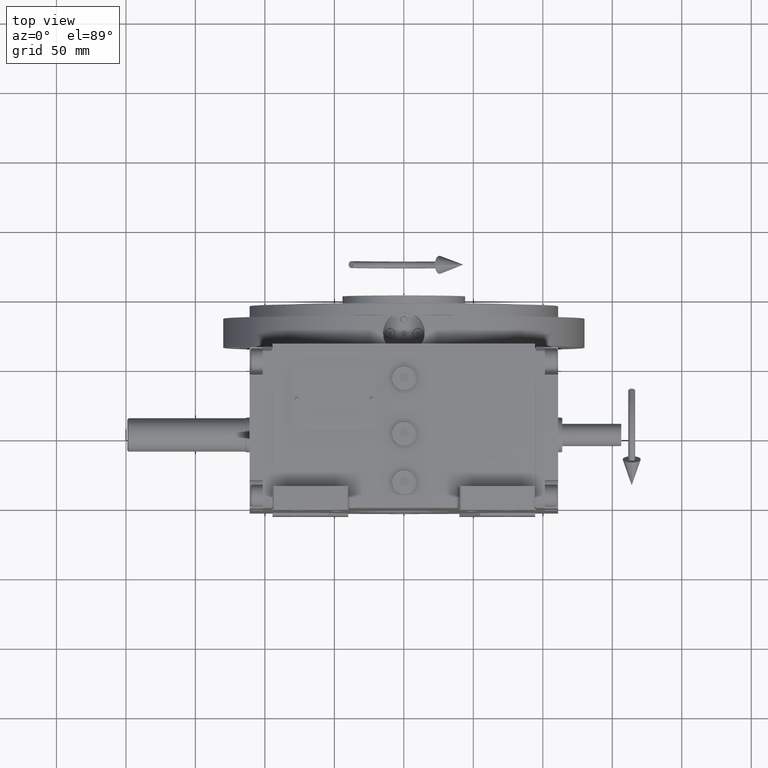
[diagram: clean part render]
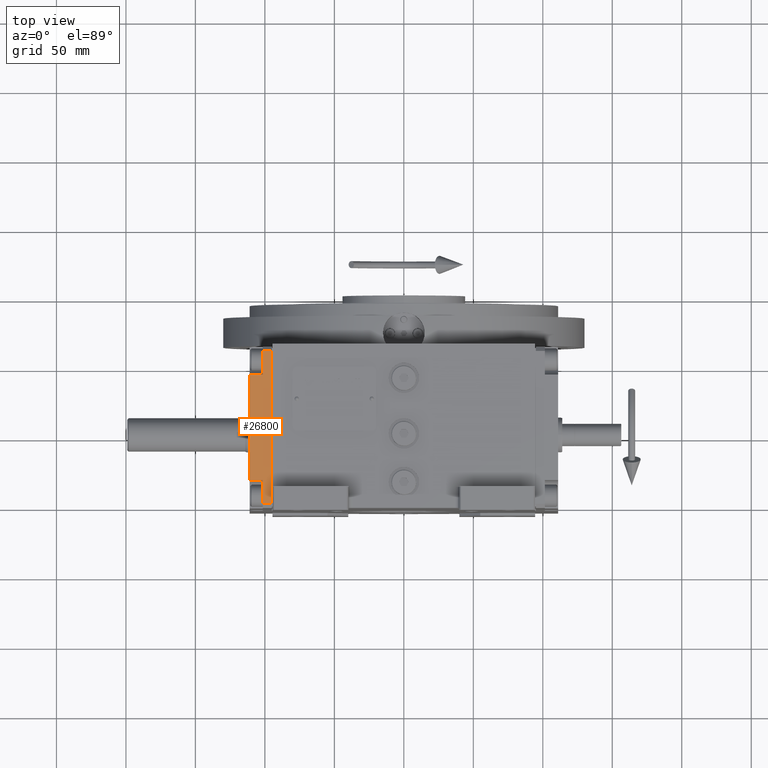
[diagram: same view with one face highlighted and labeled with its STEP entity id]
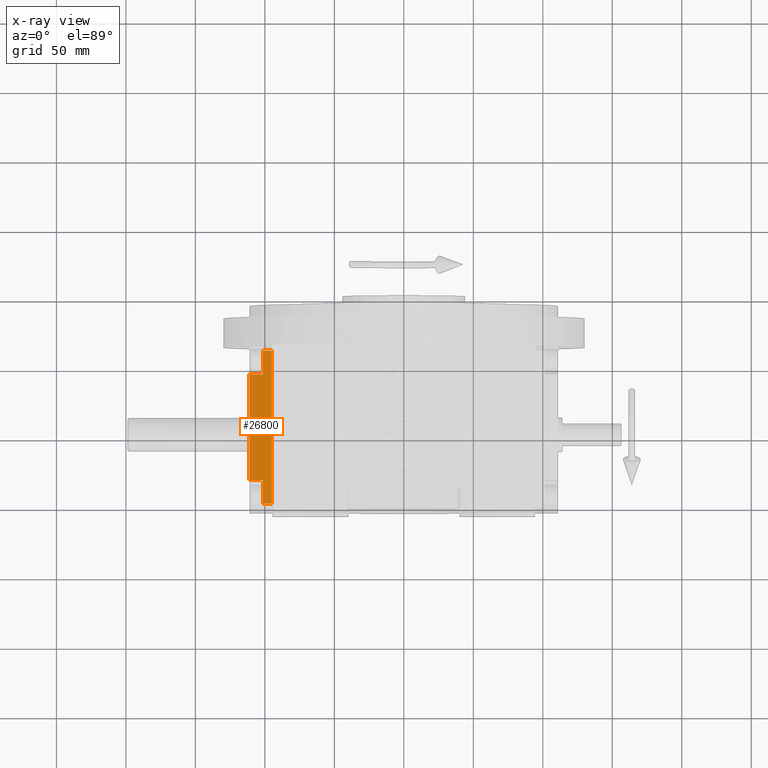
[diagram: x-ray of the same camera — body ghosted, the highlighted face saturated]
A machine part, top view. The second image highlights one B-rep face of the part: STEP entity #26800.
The next image is the same camera in x-ray: the body ghosted, the highlighted face saturated — about 0% of this face is hidden behind the body in this view.
In plain terms, the highlighted planar face has unit normal (0, 0, 1).
Its self-contained STEP definition (entity closure, byte-faithful):
#806 = LINE ( 'NONE', #59534, #9200 ) ;
#904 = CARTESIAN_POINT ( 'NONE',  ( 59.49999999999946709, -1.054711873393898713E-12, -57.99999999999997158 ) ) ;
#927 = ORIENTED_EDGE ( 'NONE', *, *, #60639, .F. ) ;
#1140 = CARTESIAN_POINT ( 'NONE',  ( -33.50000000000052580, -6.499999999998936850, -57.99999999999999289 ) ) ;
#2051 = EDGE_CURVE ( 'NONE', #51163, #8606, #7829, .T. ) ;
#2430 = EDGE_LOOP ( 'NONE', ( #41562, #14375, #16607, #47226, #41304, #927, #34033, #7525 ) ) ;
#2978 = LINE ( 'NONE', #45573, #49343 ) ;
#3018 = EDGE_CURVE ( 'NONE', #51163, #54094, #69044, .T. ) ;
#3103 = EDGE_CURVE ( 'NONE', #6907, #33235, #806, .T. ) ;
#6907 = VERTEX_POINT ( 'NONE', #8420 ) ;
#7525 = ORIENTED_EDGE ( 'NONE', *, *, #3018, .T. ) ;
#7829 = LINE ( 'NONE', #29284, #12895 ) ;
#8338 = LINE ( 'NONE', #41736, #67632 ) ;
#8420 = CARTESIAN_POINT ( 'NONE',  ( 42.50000000000000000, -16.00000000000052935, -57.99999999999999289 ) ) ;
#8606 = VERTEX_POINT ( 'NONE', #17417 ) ;
#9085 = AXIS2_PLACEMENT_3D ( 'NONE', #66404, #50595, #44642 ) ;
#9200 = VECTOR ( 'NONE', #59173, 1000.000000000000000 ) ;
#10627 = VECTOR ( 'NONE', #35045, 1000.000000000000000 ) ;
#11489 = CARTESIAN_POINT ( 'NONE',  ( -33.50000000000000000, -15.99999999999894484, -57.99999999999999289 ) ) ;
#12895 = VECTOR ( 'NONE', #65838, 1000.000000000000000 ) ;
#14375 = ORIENTED_EDGE ( 'NONE', *, *, #16635, .F. ) ;
#14405 = VERTEX_POINT ( 'NONE', #1140 ) ;
#16607 = ORIENTED_EDGE ( 'NONE', *, *, #3103, .T. ) ;
#16635 = EDGE_CURVE ( 'NONE', #6907, #29053, #2978, .T. ) ;
#17417 = CARTESIAN_POINT ( 'NONE',  ( -50.50000000000053291, 1.582067810090848070E-12, -58.00000000000002132 ) ) ;
#18837 = DIRECTION ( 'NONE',  ( -2.320366121466574645E-14, 1.000000000000000000, -2.109423746787947310E-15 ) ) ;
#20923 = CARTESIAN_POINT ( 'NONE',  ( -33.50000000000000000, -15.99999999999894484, -57.99999999999999289 ) ) ;
#24564 = VECTOR ( 'NONE', #50125, 1000.000000000000000 ) ;
#24798 = LINE ( 'NONE', #46270, #10627 ) ;
#26800 = ADVANCED_FACE ( 'NONE', ( #29514 ), #34456, .T. ) ;
#26992 = CARTESIAN_POINT ( 'NONE',  ( -50.50000000000053291, -6.499999999998423483, -58.00000000000002132 ) ) ;
#29033 = LINE ( 'NONE', #60658, #24564 ) ;
#29053 = VERTEX_POINT ( 'NONE', #32715 ) ;
#29284 = CARTESIAN_POINT ( 'NONE',  ( 59.49999999999946709, -1.054711873393898713E-12, -57.99999999999997158 ) ) ;
#29514 = FACE_OUTER_BOUND ( 'NONE', #2430, .T. ) ;
#32715 = CARTESIAN_POINT ( 'NONE',  ( 42.49999999999947420, -6.500000000000532907, -57.99999999999999289 ) ) ;
#33235 = VERTEX_POINT ( 'NONE', #11489 ) ;
#34033 = ORIENTED_EDGE ( 'NONE', *, *, #2051, .F. ) ;
#34456 = PLANE ( 'NONE',  #9085 ) ;
#35045 = DIRECTION ( 'NONE',  ( 2.320366121466574645E-14, -1.000000000000000000, 2.109423746787947310E-15 ) ) ;
#37099 = DIRECTION ( 'NONE',  ( -2.320366121466574645E-14, 1.000000000000000000, -2.109423746787947310E-15 ) ) ;
#39541 = VECTOR ( 'NONE', #58486, 1000.000000000000000 ) ;
#41304 = ORIENTED_EDGE ( 'NONE', *, *, #48452, .T. ) ;
#41448 = CARTESIAN_POINT ( 'NONE',  ( 59.49999999999946709, -6.500000000001046274, -57.99999999999997158 ) ) ;
#41562 = ORIENTED_EDGE ( 'NONE', *, *, #62709, .T. ) ;
#41736 = CARTESIAN_POINT ( 'NONE',  ( -33.50000000000052580, -6.499999999998936850, -57.99999999999999289 ) ) ;
#44642 = DIRECTION ( 'NONE',  ( -1.000000000000000000, 2.320366121466574014E-14, -8.437694987151192863E-15 ) ) ;
#45573 = CARTESIAN_POINT ( 'NONE',  ( 42.50000000000000000, -16.00000000000052935, -57.99999999999999289 ) ) ;
#46270 = CARTESIAN_POINT ( 'NONE',  ( -50.50000000000053291, 1.582067810090848070E-12, -58.00000000000002132 ) ) ;
#47226 = ORIENTED_EDGE ( 'NONE', *, *, #65429, .T. ) ;
#47614 = CARTESIAN_POINT ( 'NONE',  ( 59.49999999999946709, -1.054711873393898713E-12, -57.99999999999997158 ) ) ;
#48054 = VERTEX_POINT ( 'NONE', #26992 ) ;
#48452 = EDGE_CURVE ( 'NONE', #14405, #48054, #8338, .T. ) ;
#49343 = VECTOR ( 'NONE', #18837, 1000.000000000000000 ) ;
#50125 = DIRECTION ( 'NONE',  ( -1.000000000000000000, 2.320366121466574014E-14, -8.437694987151192863E-15 ) ) ;
#50595 = DIRECTION ( 'NONE',  ( 8.437694987151241772E-15, 2.109423746787555247E-15, -1.000000000000000000 ) ) ;
#51163 = VERTEX_POINT ( 'NONE', #904 ) ;
#51215 = DIRECTION ( 'NONE',  ( -1.000000000000000000, 2.320366121466574014E-14, -8.437694987151192863E-15 ) ) ;
#54094 = VERTEX_POINT ( 'NONE', #41448 ) ;
#58486 = DIRECTION ( 'NONE',  ( 2.320366121466574645E-14, -1.000000000000000000, 2.109423746787947310E-15 ) ) ;
#59173 = DIRECTION ( 'NONE',  ( -1.000000000000000000, 2.320366121466574014E-14, -8.437694987151192863E-15 ) ) ;
#59534 = CARTESIAN_POINT ( 'NONE',  ( 42.50000000000000000, -16.00000000000052935, -57.99999999999999289 ) ) ;
#60639 = EDGE_CURVE ( 'NONE', #8606, #48054, #24798, .T. ) ;
#60658 = CARTESIAN_POINT ( 'NONE',  ( 59.49999999999946709, -6.500000000001046274, -57.99999999999997158 ) ) ;
#62709 = EDGE_CURVE ( 'NONE', #54094, #29053, #29033, .T. ) ;
#63805 = LINE ( 'NONE', #20923, #67330 ) ;
#65429 = EDGE_CURVE ( 'NONE', #33235, #14405, #63805, .T. ) ;
#65838 = DIRECTION ( 'NONE',  ( -1.000000000000000000, 2.320366121466574014E-14, -8.437694987151192863E-15 ) ) ;
#66404 = CARTESIAN_POINT ( 'NONE',  ( 62.49999999999946709, -1.054711873393898713E-12, -57.99999999999894129 ) ) ;
#67330 = VECTOR ( 'NONE', #37099, 1000.000000000000000 ) ;
#67632 = VECTOR ( 'NONE', #51215, 1000.000000000000000 ) ;
#69044 = LINE ( 'NONE', #47614, #39541 ) ;